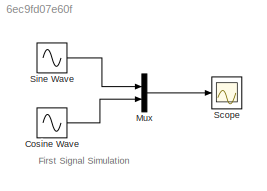
MODEL slx_6ec9fd07e60f
KIND model
CONFIG AbsTol = auto
CONFIG FixedStep = auto
CONFIG MaxStep = auto
CONFIG MinStep = auto
CONFIG RelTol = 1e-3
CONFIG SampleTimeConstraint = Unconstrained
CONFIG Solver = ode45
CONFIG SolverMode = Auto
CONFIG SolverName = ode45
CONFIG StartTime = 0.0
CONFIG StopTime = 10.0
BLOCK [Sin] Cosine Wave
  Phase = pi/2
  Ports = [0, 1]
  SampleTime = 0
BLOCK [Mux] Mux
  DisplayOption = bar
  Inputs = 2
  Ports = [2, 1]
BLOCK [Scope] Scope
  Floating = off
  LegendLocations = 0.77348      0.8775     0.16968      0.0576
  NumInputPorts = 1
  Ports = [1]
  ShowLegends = on
BLOCK [Sin] Sine Wave
  Ports = [0, 1]
  SampleTime = 0
ANNOTATION (root): First Signal Simulation
LINE Cosine Wave:1 -> Mux:2
LINE Mux:1 -> Scope:1
LINE Sine Wave:1 -> Mux:1
